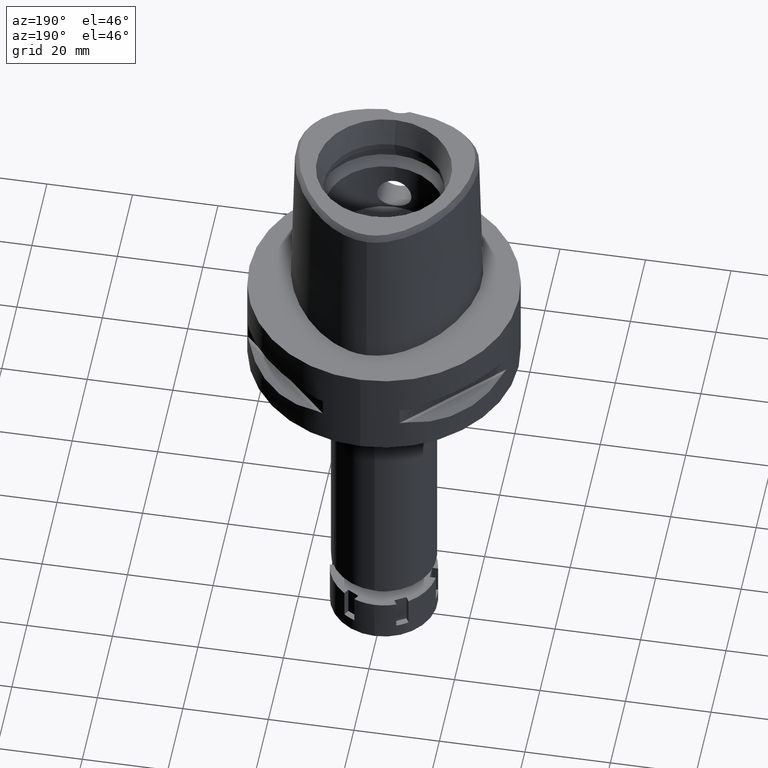
[diagram: clean part render]
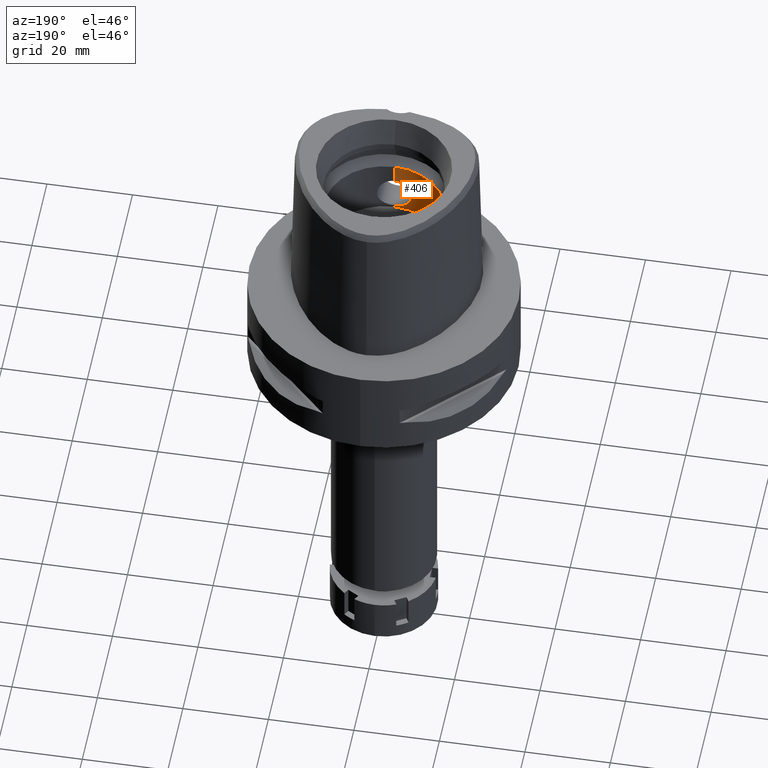
[diagram: same view with one face highlighted and labeled with its STEP entity id]
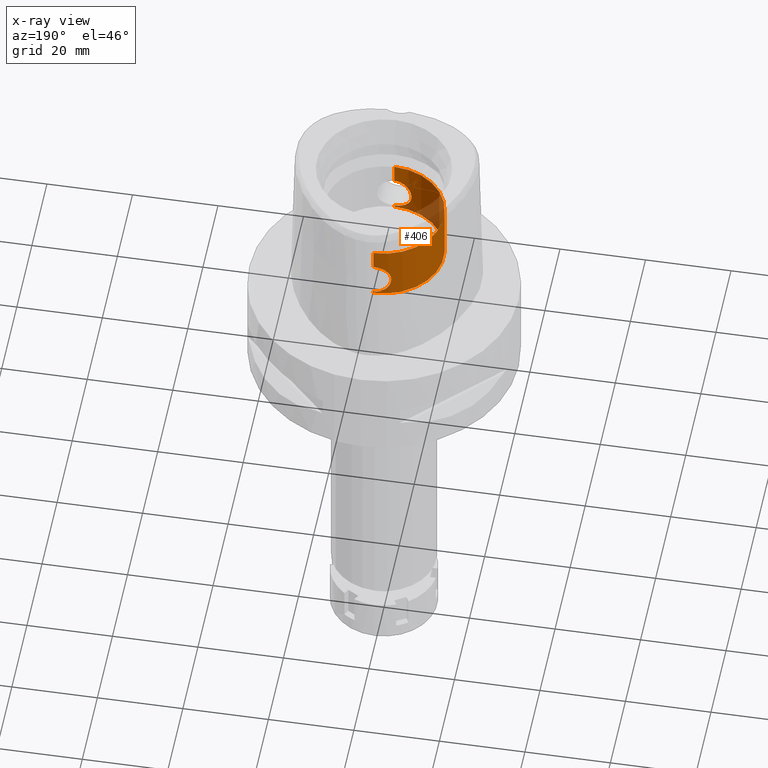
[diagram: x-ray of the same camera — body ghosted, the highlighted face saturated]
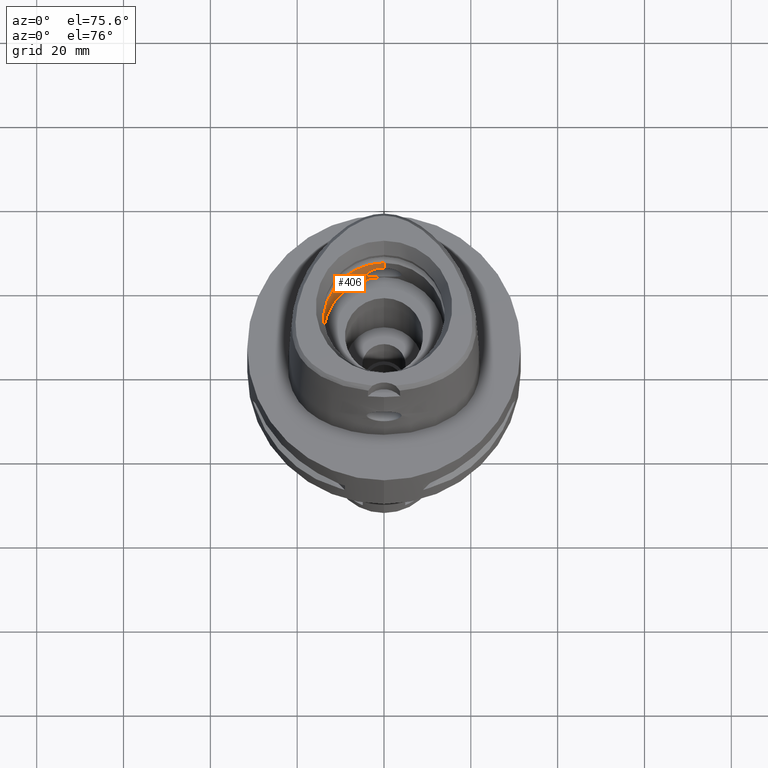
[diagram: same view with one face highlighted and labeled with its STEP entity id]
A machine part, auxiliary view. The second image highlights one B-rep face of the part: STEP entity #406.
The next image is the same camera in x-ray: the body ghosted, the highlighted face saturated — about 11% of this face is hidden behind the body in this view.
A second angle (auxiliary view) of the same face is appended — the face is thin or edge-on in the first view.
In plain terms, the highlighted cylindrical surface (partial cylindrical patch) has radius 14 mm, axis along (0, 0, -1).
Its self-contained STEP definition (entity closure, byte-faithful):
#4 = CARTESIAN_POINT ( 'NONE',  ( -2.837978858523875658, 13.70934507260265889, 18.38945062057910107 ) ) ;
#19 = LINE ( 'NONE', #2620, #2634 ) ;
#64 = CARTESIAN_POINT ( 'NONE',  ( -3.321818675673360310, 13.60022453488441307, 17.81710118645127494 ) ) ;
#88 = CARTESIAN_POINT ( 'NONE',  ( -2.286398386022375107, 13.81203673216855421, 12.15707516242134645 ) ) ;
#109 = VERTEX_POINT ( 'NONE', #911 ) ;
#112 = CARTESIAN_POINT ( 'NONE',  ( -3.446436350191965925, 13.56939302552878601, 17.63216979020259245 ) ) ;
#135 = CARTESIAN_POINT ( 'NONE',  ( -2.255323879992921832, 13.81714880390372358, 12.13606855324745659 ) ) ;
#140 = CARTESIAN_POINT ( 'NONE',  ( -1.643394206415252912, -13.90359217049017637, 11.79641963000350735 ) ) ;
#146 = CARTESIAN_POINT ( 'NONE',  ( -3.927481156276703356, -13.43839870143042070, 14.47659767331564851 ) ) ;
#159 = CARTESIAN_POINT ( 'NONE',  ( -3.754238695447207785, 13.48734574627154004, 13.98070187456518632 ) ) ;
#163 = DIRECTION ( 'NONE',  ( 0.0000000000000000000, -1.000000000000000000, 0.0000000000000000000 ) ) ;
#164 = CARTESIAN_POINT ( 'NONE',  ( -2.407032360563614137, -13.79178997040971133, 12.24015219205911009 ) ) ;
#184 = CARTESIAN_POINT ( 'NONE',  ( -3.750537618544252716, 13.48837475229623095, 13.97159430630828680 ) ) ;
#193 = CARTESIAN_POINT ( 'NONE',  ( -2.180419572367277237, -13.82916698131268340, 12.08696268834681398 ) ) ;
#220 = LINE ( 'NONE', #3594, #290 ) ;
#226 = CARTESIAN_POINT ( 'NONE',  ( -3.321853313816561126, -13.60021618836596602, 13.18294841949425589 ) ) ;
#263 = CARTESIAN_POINT ( 'NONE',  ( -3.444120655667430420, -13.56976859149127002, 17.63136982694932087 ) ) ;
#277 = DIRECTION ( 'NONE',  ( 0.0000000000000000000, 0.0000000000000000000, 1.000000000000000000 ) ) ;
#290 = VECTOR ( 'NONE', #1465, 1000.000000000000000 ) ;
#293 = CARTESIAN_POINT ( 'NONE',  ( -2.356176558260017817, -13.80026501326340949, 18.79419852732514684 ) ) ;
#331 = EDGE_CURVE ( 'NONE', #3643, #4776, #1642, .T. ) ;
#363 = EDGE_LOOP ( 'NONE', ( #962, #1253, #4699, #4331, #3303, #4675, #3151, #1590 ) ) ;
#367 = CARTESIAN_POINT ( 'NONE',  ( -1.935031803127010175, 13.86568816070503907, 19.05844626928363894 ) ) ;
#400 = CARTESIAN_POINT ( 'NONE',  ( -2.083411601078662745, 13.84411510349304208, 18.97319540526133963 ) ) ;
#406 = ADVANCED_FACE ( 'NONE', ( #4474 ), #5319, .F. ) ;
#433 = CARTESIAN_POINT ( 'NONE',  ( -1.643415310734924306, 13.90358979474741652, 19.20357080160434649 ) ) ;
#453 = VERTEX_POINT ( 'NONE', #1973 ) ;
#475 = CARTESIAN_POINT ( 'NONE',  ( 0.0000000000000000000, -14.00000000000000000, 11.00000000000000000 ) ) ;
#488 = CARTESIAN_POINT ( 'NONE',  ( 0.0000000000000000000, 14.00000000000000000, 19.55000000000000071 ) ) ;
#521 = CARTESIAN_POINT ( 'NONE',  ( -1.571462107190173096, 13.91140666532740511, 11.76727331523304088 ) ) ;
#529 = CARTESIAN_POINT ( 'NONE',  ( -3.723016948482198440, -13.49602158194763746, 13.90561649030535918 ) ) ;
#542 = CARTESIAN_POINT ( 'NONE',  ( -4.049896901465993793, 13.40142245051326420, 15.25152965794993776 ) ) ;
#564 = CARTESIAN_POINT ( 'NONE',  ( -3.098504878937593521, 13.65306871748957995, 12.89079134081682909 ) ) ;
#569 = CARTESIAN_POINT ( 'NONE',  ( -3.359057406672039559, -13.59102633627046863, 13.23742626534944833 ) ) ;
#591 = CARTESIAN_POINT ( 'NONE',  ( -3.760700854268280047, 13.48554726028666906, 13.99676879321618550 ) ) ;
#597 = CARTESIAN_POINT ( 'NONE',  ( -2.619686157468937626, -13.75271022501200946, 12.41040829226227515 ) ) ;
#604 = CARTESIAN_POINT ( 'NONE',  ( -4.049888364927977769, -13.40142438051590368, 15.74858425829883402 ) ) ;
#617 = CARTESIAN_POINT ( 'NONE',  ( -4.027177030541076341, 13.40874799796429961, 14.99692865875754499 ) ) ;
#625 = CARTESIAN_POINT ( 'NONE',  ( -2.312898137749423100, -13.80784210691287406, 12.17400781861397618 ) ) ;
#631 = CARTESIAN_POINT ( 'NONE',  ( -3.649287980261081810, -13.51628390331949525, 17.26146288145097074 ) ) ;
#647 = DIRECTION ( 'NONE',  ( 0.0000000000000000000, 0.0000000000000000000, 1.000000000000000000 ) ) ;
#654 = CARTESIAN_POINT ( 'NONE',  ( -3.092413353117760444, -13.65466607278749755, 12.88133576746538189 ) ) ;
#663 = CARTESIAN_POINT ( 'NONE',  ( -3.410729761823929618, -13.57816908607356687, 17.68402948338712832 ) ) ;
#689 = DIRECTION ( 'NONE',  ( 0.0000000000000000000, 0.0000000000000000000, -1.000000000000000000 ) ) ;
#690 = CARTESIAN_POINT ( 'NONE',  ( -3.446478130593934708, -13.56938248441540473, 13.36789723762434789 ) ) ;
#727 = CARTESIAN_POINT ( 'NONE',  ( -3.760687355218495842, -13.48555138752895743, 17.00326497579651175 ) ) ;
#753 = CARTESIAN_POINT ( 'NONE',  ( -2.322873642589027732, -13.80594824667627663, 18.81781813267140180 ) ) ;
#857 = CARTESIAN_POINT ( 'NONE',  ( -0.5031407453973538724, 13.99299611601340310, 19.52713535065471362 ) ) ;
#871 = DIRECTION ( 'NONE',  ( 0.0000000000000000000, 0.0000000000000000000, 1.000000000000000000 ) ) ;
#882 = CARTESIAN_POINT ( 'NONE',  ( -2.225297292170477004, 13.82200194383636571, 18.88386937964061474 ) ) ;
#888 = EDGE_CURVE ( 'NONE', #978, #1123, #5051, .T. ) ;
#911 = CARTESIAN_POINT ( 'NONE',  ( 0.0000000000000000000, 14.00000000000000000, 11.44999999999999929 ) ) ;
#938 = CARTESIAN_POINT ( 'NONE',  ( -2.256427752581860346, 13.81696803720785027, 12.13681065373009282 ) ) ;
#949 = CARTESIAN_POINT ( 'NONE',  ( -3.864690270360905622, -13.45628098107098936, 16.71293879899407386 ) ) ;
#952 = EDGE_CURVE ( 'NONE', #2453, #453, #19, .T. ) ;
#962 = ORIENTED_EDGE ( 'NONE', *, *, #1908, .F. ) ;
#965 = CARTESIAN_POINT ( 'NONE',  ( -3.557103315862197412, 13.54067999979679016, 13.56250036251559266 ) ) ;
#975 = CARTESIAN_POINT ( 'NONE',  ( -4.050110812253317150, -13.40137386750408233, 15.25506672271457376 ) ) ;
#978 = VERTEX_POINT ( 'NONE', #475 ) ;
#989 = CARTESIAN_POINT ( 'NONE',  ( -2.268770039433237518, 13.81494532562728850, 12.14511618722574582 ) ) ;
#993 = CARTESIAN_POINT ( 'NONE',  ( -3.344238039716466382, -13.59469216954687099, 13.21553584121841141 ) ) ;
#1012 = CARTESIAN_POINT ( 'NONE',  ( -3.850551668351260837, 13.46064315705944736, 16.78616536914487511 ) ) ;
#1019 = CARTESIAN_POINT ( 'NONE',  ( -2.217814638591480314, -13.82320508336324849, 12.11122171766705513 ) ) ;
#1042 = CARTESIAN_POINT ( 'NONE',  ( -3.329846348044684934, 13.59830429444947697, 13.19312097257027538 ) ) ;
#1048 = CARTESIAN_POINT ( 'NONE',  ( -1.017634815018009897, -13.96323084136859727, 11.57763677123180379 ) ) ;
#1055 = CARTESIAN_POINT ( 'NONE',  ( -3.471394015375984576, -13.56282214852042678, 17.58641446143571585 ) ) ;
#1071 = CARTESIAN_POINT ( 'NONE',  ( 0.0000000000000000000, 0.0000000000000000000, 39.89999999999999858 ) ) ;
#1072 = CARTESIAN_POINT ( 'NONE',  ( -1.467171431347119803, -13.92282306808096592, 11.72505602459309237 ) ) ;
#1079 = CARTESIAN_POINT ( 'NONE',  ( -2.632430901664709832, -13.75053431939276827, 18.58072566514229251 ) ) ;
#1105 = CARTESIAN_POINT ( 'NONE',  ( -2.987574083360148958, -13.67819611580214634, 12.75919171830227761 ) ) ;
#1123 = VERTEX_POINT ( 'NONE', #1407 ) ;
#1168 = CARTESIAN_POINT ( 'NONE',  ( -1.773866901112352901, -13.88717232140601077, 19.14143182997138481 ) ) ;
#1179 = CARTESIAN_POINT ( 'NONE',  ( -1.029187525018224747, 13.97152819383275002, 11.54372763678625802 ) ) ;
#1195 = CARTESIAN_POINT ( 'NONE',  ( 0.0000000000000000000, -14.00000000000000000, 19.55000000000000071 ) ) ;
#1253 = ORIENTED_EDGE ( 'NONE', *, *, #888, .T. ) ;
#1273 = CARTESIAN_POINT ( 'NONE',  ( -1.516920385664373150, 13.91749884183752961, 19.25522076863004983 ) ) ;
#1335 = CARTESIAN_POINT ( 'NONE',  ( -2.312900638392178632, 13.80784164026959715, 18.82599051021653125 ) ) ;
#1336 = CARTESIAN_POINT ( 'NONE',  ( 0.0000000000000000000, 14.00000000000000000, 19.55000000000000071 ) ) ;
#1361 = CARTESIAN_POINT ( 'NONE',  ( -1.467197647157900908, 13.92282048153832719, 19.27493378766159893 ) ) ;
#1391 = VECTOR ( 'NONE', #277, 1000.000000000000000 ) ;
#1392 = CARTESIAN_POINT ( 'NONE',  ( -3.518015050369055707, 13.55099577414488010, 17.51099131749448290 ) ) ;
#1407 = CARTESIAN_POINT ( 'NONE',  ( 0.0000000000000000000, 14.00000000000000000, 11.00000000000000000 ) ) ;
#1417 = CARTESIAN_POINT ( 'NONE',  ( -3.386228288496582195, 13.58428977150568073, 13.27829381858609992 ) ) ;
#1439 = CARTESIAN_POINT ( 'NONE',  ( -2.010507491949531822, 13.85534073015723422, 11.98171406918338988 ) ) ;
#1444 = CARTESIAN_POINT ( 'NONE',  ( -2.749425564356545060, -13.72738545437160163, 12.52576752525318859 ) ) ;
#1459 = DIRECTION ( 'NONE',  ( 0.0000000000000000000, 0.0000000000000000000, 1.000000000000000000 ) ) ;
#1462 = CARTESIAN_POINT ( 'NONE',  ( -3.377728049961138623, 13.58640530706103888, 13.26539486208216090 ) ) ;
#1465 = DIRECTION ( 'NONE',  ( 0.0000000000000000000, 0.0000000000000000000, 1.000000000000000000 ) ) ;
#1466 = EDGE_CURVE ( 'NONE', #453, #3915, #2463, .T. ) ;
#1499 = CARTESIAN_POINT ( 'NONE',  ( -3.641230269576494649, 13.51834568162910166, 17.27426933462038505 ) ) ;
#1512 = CARTESIAN_POINT ( 'NONE',  ( -3.750524322623024265, -13.48837880578509640, 17.02843831975096123 ) ) ;
#1532 = CARTESIAN_POINT ( 'NONE',  ( -2.824270181472749996, -13.71216970554408654, 12.59716805753184588 ) ) ;
#1569 = CARTESIAN_POINT ( 'NONE',  ( -2.474905499061441638, -13.77946236753882303, 18.70653372657951152 ) ) ;
#1590 = ORIENTED_EDGE ( 'NONE', *, *, #331, .F. ) ;
#1599 = CARTESIAN_POINT ( 'NONE',  ( -1.832688503999202911, -13.87954592927308362, 19.11223571035986168 ) ) ;
#1625 = CARTESIAN_POINT ( 'NONE',  ( -1.571467769238337642, -13.91140618995270906, 19.23272429961998142 ) ) ;
#1642 = B_SPLINE_CURVE_WITH_KNOTS ( 'NONE', 3,
 ( #4540, #5379, #4901, #2378, #1048, #4420, #4451, #4504, #1072, #5320, #5293, #140, #1884, #4051, #4959, #3194, #1943, #193, #2708, #1019, #4844, #3628, #625, #164, #3551, #597, #4868, #1444, #4023, #1532, #5350, #1105, #654, #3223, #4929, #4085, #226, #993, #3657, #569, #2826, #1863, #690, #3573, #3969, #5270, #4000, #5510, #529, #4404, #1842, #3170, #2295, #146, #4877, #975, #604, #2569, #2324, #4029, #949, #1815, #5251, #3205, #727, #3752, #1512, #4058, #631, #4910, #4122, #1055, #263, #663, #2772, #4570, #1984, #2046, #5358, #3230, #3664, #3311, #2016, #1953, #4936, #3253, #2447, #1079, #1569, #2802, #293, #753, #5000, #3727, #2386, #4512, #5026, #4480, #5449, #1599, #1168, #2885, #4600, #2475, #1625, #3336, #5052, #2915, #1195 ),
 .UNSPECIFIED., .F., .F.,
 ( 4, 2, 2, 1, 1, 2, 2, 2, 2, 1, 1, 1, 2, 2, 2, 2, 1, 2, 2, 2, 2, 1, 1, 1, 2, 2, 2, 2, 1, 1, 2, 2, 2, 2, 2, 2, 1, 1, 1, 2, 2, 2, 2, 1, 1, 1, 2, 2, 2, 2, 2, 2, 2, 2, 1, 1, 1, 2, 2, 2, 2, 1, 2, 2, 4 ),
 ( 0.0000000000000000000, 0.06249999999998706590, 0.09374999999998054334, 0.1093749999999772127, 0.1171874999999754918, 0.1210937499999746869, 0.1249999999999738959, 0.1562499999999678868, 0.1718749999999648614, 0.1796874999999633349, 0.1835937499999625022, 0.1855468749999620859, 0.1865234374999620026, 0.1874999999999619471, 0.2187499999999552580, 0.2343749999999517886, 0.2421874999999502065, 0.2460937499999492906, 0.2499999999999483746, 0.2812499999999402700, 0.2968749999999362177, 0.3046874999999340528, 0.3085937499999331646, 0.3105468749999327205, 0.3115234374999324984, 0.3124999999999322209, 0.3437499999999352740, 0.3593749999999367728, 0.3671874999999375500, 0.3710937499999382161, 0.3730468749999384936, 0.3749999999999388267, 0.4374999999999487632, 0.4999999999999586997, 0.5624999999999685807, 0.5937499999999732436, 0.6093749999999755751, 0.6171874999999767963, 0.6210937499999772404, 0.6230468749999775735, 0.6249999999999777955, 0.6562499999999837907, 0.6718749999999863443, 0.6796874999999875655, 0.6835937499999882316, 0.6855468749999884537, 0.6865234374999882316, 0.6874999999999880096, 0.7187499999999833467, 0.7343749999999807931, 0.7421874999999792388, 0.7499999999999775735, 0.7812499999999716893, 0.7968749999999686917, 0.8046874999999671374, 0.8085937499999665823, 0.8105468749999663602, 0.8115234374999662492, 0.8124999999999661382, 0.8437499999999698019, 0.8593749999999715783, 0.8671874999999726885, 0.8710937499999731326, 0.8749999999999736877, 1.000000000000000000 ),
 .UNSPECIFIED. ) ;
#1665 = CARTESIAN_POINT ( 'NONE',  ( 0.0000000000000000000, 0.0000000000000000000, 11.00000000000000000 ) ) ;
#1679 = CARTESIAN_POINT ( 'NONE',  ( -2.128124874501789332, 13.83734818430797553, 18.94612210418497966 ) ) ;
#1703 = CARTESIAN_POINT ( 'NONE',  ( -2.407033472313297562, 13.79178974266145907, 18.75984676825466479 ) ) ;
#1727 = CARTESIAN_POINT ( 'NONE',  ( -3.092390845124751486, 13.65467110477480617, 18.11869046924010007 ) ) ;
#1754 = CARTESIAN_POINT ( 'NONE',  ( -1.210747585064585241, 13.94747087010052411, 19.36537112441429898 ) ) ;
#1783 = EDGE_CURVE ( 'NONE', #1123, #109, #1937, .T. ) ;
#1784 = CARTESIAN_POINT ( 'NONE',  ( -3.344200888486977608, 13.59470120130075621, 17.78451853051173615 ) ) ;
#1806 = CARTESIAN_POINT ( 'NONE',  ( -3.740342756350068854, 13.49122728102877744, 17.05319435210082801 ) ) ;
#1815 = CARTESIAN_POINT ( 'NONE',  ( -3.833369308889835736, -13.46518925916761944, 16.80995876181424364 ) ) ;
#1830 = CARTESIAN_POINT ( 'NONE',  ( -3.381267134393989071, 13.58552518092179717, 13.27075058725716339 ) ) ;
#1842 = CARTESIAN_POINT ( 'NONE',  ( -3.737892709872518093, -13.49190587340985914, 13.94092444701525935 ) ) ;
#1859 = CARTESIAN_POINT ( 'NONE',  ( -3.833383690844314184, 13.46518483971829561, 14.19008306889938709 ) ) ;
#1863 = CARTESIAN_POINT ( 'NONE',  ( -3.362173742602614368, -13.59025497177323238, 13.24205651252869664 ) ) ;
#1879 = CARTESIAN_POINT ( 'NONE',  ( -3.922086968081855751, 13.43982905497387748, 14.48120596842087160 ) ) ;
#1884 = CARTESIAN_POINT ( 'NONE',  ( -1.758905181551283281, -13.88947997003250023, 11.84947872873092933 ) ) ;
#1898 = VECTOR ( 'NONE', #647, 1000.000000000000000 ) ;
#1905 = CARTESIAN_POINT ( 'NONE',  ( -3.267850773748626647, 13.61368064684365820, 13.10388896299057748 ) ) ;
#1908 = EDGE_CURVE ( 'NONE', #978, #3643, #220, .T. ) ;
#1937 = LINE ( 'NONE', #3134, #1898 ) ;
#1943 = CARTESIAN_POINT ( 'NONE',  ( -2.128121687471102419, -13.83734872393078597, 12.05387591117995427 ) ) ;
#1953 = CARTESIAN_POINT ( 'NONE',  ( -2.993286815507711474, -13.67636053672545060, 18.22846751438161306 ) ) ;
#1967 = CARTESIAN_POINT ( 'NONE',  ( -0.4996125166952807284, 14.00000000000000355, 11.45000000000000462 ) ) ;
#1973 = CARTESIAN_POINT ( 'NONE',  ( 0.0000000000000000000, 14.00000000000000000, 24.19999999999999929 ) ) ;
#1984 = CARTESIAN_POINT ( 'NONE',  ( -3.381261640111615563, -13.58552648434263865, 17.72925774582015990 ) ) ;
#2000 = AXIS2_PLACEMENT_3D ( 'NONE', #3588, #1459, #3128 ) ;
#2016 = CARTESIAN_POINT ( 'NONE',  ( -3.020671571505663788, -13.67035761354438961, 18.19807224233194276 ) ) ;
#2046 = CARTESIAN_POINT ( 'NONE',  ( -3.377722732033453745, -13.58640656469127528, 17.73461317607163679 ) ) ;
#2090 = CARTESIAN_POINT ( 'NONE',  ( -2.180421397699280561, 13.82916663773787036, 18.91303614152313628 ) ) ;
#2175 = CARTESIAN_POINT ( 'NONE',  ( -3.354678549943816535, 13.59210992299929188, 17.76907015803455536 ) ) ;
#2207 = CARTESIAN_POINT ( 'NONE',  ( -2.705636138407079727, 13.73602333027448097, 18.51388304891932890 ) ) ;
#2236 = CARTESIAN_POINT ( 'NONE',  ( -3.649301949972809656, 13.51627993554674134, 13.73856573843788276 ) ) ;
#2256 = CARTESIAN_POINT ( 'NONE',  ( 0.0000000000000000000, -14.00000000000000000, 11.44999999999999929 ) ) ;
#2257 = CARTESIAN_POINT ( 'NONE',  ( -3.864704953914419150, 13.45627652363382509, 14.28710780149922854 ) ) ;
#2283 = CARTESIAN_POINT ( 'NONE',  ( -2.261346978752236669, 13.81616282470567825, 12.14011627832552165 ) ) ;
#2295 = CARTESIAN_POINT ( 'NONE',  ( -3.850581325947942002, -13.46063411092176665, 14.21392402467050431 ) ) ;
#2312 = CARTESIAN_POINT ( 'NONE',  ( -1.643117181691682527, 13.90317184028721798, 11.79805591750830729 ) ) ;
#2324 = CARTESIAN_POINT ( 'NONE',  ( -3.953308345509189081, -13.43069386239823437, 16.38940134542785998 ) ) ;
#2338 = CARTESIAN_POINT ( 'NONE',  ( -2.903820362920327192, 13.69557819983833191, 12.67648326539568160 ) ) ;
#2378 = CARTESIAN_POINT ( 'NONE',  ( -0.8886493225593367074, -13.97198540294750480, 11.54653074165001136 ) ) ;
#2386 = CARTESIAN_POINT ( 'NONE',  ( -2.261346510149459643, -13.81616280940066588, 18.85988403713285777 ) ) ;
#2431 = LINE ( 'NONE', #5430, #1391 ) ;
#2447 = CARTESIAN_POINT ( 'NONE',  ( -2.749422472407565099, -13.72794489289828057, 18.47890695833534380 ) ) ;
#2453 = VERTEX_POINT ( 'NONE', #1336 ) ;
#2463 = CIRCLE ( 'NONE', #2000, 14.00000000000000000 ) ;
#2475 = CARTESIAN_POINT ( 'NONE',  ( -1.600075446870311113, -13.90814546667693108, 19.22055106282001447 ) ) ;
#2522 = CARTESIAN_POINT ( 'NONE',  ( -0.8886659557338186799, 13.97198446405361594, 19.45346560054120388 ) ) ;
#2549 = B_SPLINE_CURVE_WITH_KNOTS ( 'NONE', 3,
 ( #488, #2992, #857, #2522, #2632, #1754, #4224, #4255, #1361, #3024, #1273, #433, #4760, #367, #5191, #400, #1679, #2090, #3859, #3803, #882, #4706, #1335, #1703, #4335, #3050, #2207, #2580, #3414, #5128, #4, #3919, #1727, #2608, #3440, #4310, #64, #1784, #2175, #3885, #3493, #5215, #112, #1392, #2760, #1499, #3592, #3106, #4468, #5239, #5290, #1806, #1012, #5266, #3965, #3157, #542, #617, #4816, #1879, #2257, #1859, #3994, #4018, #591, #159, #184, #5312, #2236, #965, #2683, #3185, #4894, #5343, #4417, #1417, #1830, #1462, #1042, #1905, #3621, #564, #3544, #4395, #2703, #2338, #4044, #3132, #4788, #2730, #3514, #4839, #88, #989, #2283, #938, #135, #3570, #1439, #4861, #2662, #4443, #2312, #4374, #521, #3943, #1179, #1967, #3739 ),
 .UNSPECIFIED., .F., .F.,
 ( 4, 2, 2, 1, 1, 2, 2, 2, 2, 1, 1, 1, 2, 2, 2, 2, 1, 2, 2, 2, 2, 1, 1, 1, 2, 2, 2, 2, 1, 1, 2, 2, 2, 2, 2, 2, 1, 1, 1, 2, 2, 2, 2, 1, 1, 1, 2, 2, 2, 2, 2, 2, 2, 2, 1, 1, 1, 2, 2, 2, 2, 1, 2, 2, 4 ),
 ( 0.0000000000000000000, 0.06250000000000770217, 0.09375000000001151856, 0.1093750000000134476, 0.1171875000000144190, 0.1210937500000147660, 0.1250000000000151268, 0.1562500000000202893, 0.1718750000000230094, 0.1796875000000243694, 0.1835937500000252021, 0.1855468750000256739, 0.1865234375000258682, 0.1875000000000260902, 0.2187500000000291156, 0.2343750000000303924, 0.2421875000000310030, 0.2460937500000311418, 0.2500000000000312528, 0.2812500000000331402, 0.2968750000000343614, 0.3046875000000350275, 0.3085937500000354161, 0.3105468750000360822, 0.3115234375000359712, 0.3125000000000358047, 0.3437500000000310862, 0.3593750000000286993, 0.3671875000000278666, 0.3710937500000274780, 0.3730468750000269229, 0.3750000000000263678, 0.4375000000000303646, 0.5000000000000343059, 0.5625000000000381917, 0.5937500000000404121, 0.6093750000000414113, 0.6171875000000421885, 0.6210937500000422995, 0.6230468750000425215, 0.6250000000000426326, 0.6562500000000452971, 0.6718750000000467404, 0.6796875000000475175, 0.6835937500000481837, 0.6855468750000484057, 0.6865234375000485167, 0.6875000000000486278, 0.7187500000000430767, 0.7343750000000401901, 0.7421875000000388578, 0.7500000000000374145, 0.7812500000000315303, 0.7968750000000286438, 0.8046875000000270894, 0.8085937500000264233, 0.8105468750000259792, 0.8115234375000256462, 0.8125000000000253131, 0.8437500000000202061, 0.8593750000000176525, 0.8671875000000165423, 0.8710937500000159872, 0.8750000000000154321, 1.000000000000000000 ),
 .UNSPECIFIED. ) ;
#2569 = CARTESIAN_POINT ( 'NONE',  ( -4.027164429064433726, -13.40875122217619975, 16.00316316733650623 ) ) ;
#2580 = CARTESIAN_POINT ( 'NONE',  ( -2.749410275058081332, 13.72738853752937871, 18.47424654122641385 ) ) ;
#2608 = CARTESIAN_POINT ( 'NONE',  ( -3.217024280452940310, 13.62560801649056330, 17.96124663679836786 ) ) ;
#2620 = CARTESIAN_POINT ( 'NONE',  ( 0.0000000000000000000, 14.00000000000000000, 19.55000000000000071 ) ) ;
#2632 = CARTESIAN_POINT ( 'NONE',  ( -1.017653704333610909, 13.96322960907036936, 19.42235841233798865 ) ) ;
#2634 = VECTOR ( 'NONE', #871, 1000.000000000000000 ) ;
#2662 = CARTESIAN_POINT ( 'NONE',  ( -1.773865141563537806, 13.88717244335602885, 11.85856729402129695 ) ) ;
#2683 = CARTESIAN_POINT ( 'NONE',  ( -3.524214125959910682, 13.54926494695427230, 13.50319703746742306 ) ) ;
#2703 = CARTESIAN_POINT ( 'NONE',  ( -2.935454736716768931, 13.68884642359337889, 12.70940751404423175 ) ) ;
#2708 = CARTESIAN_POINT ( 'NONE',  ( -2.206593057645283906, -13.82500440804228248, 12.10388654105353368 ) ) ;
#2730 = CARTESIAN_POINT ( 'NONE',  ( -2.425350615249378450, 13.78827952446820504, 12.25601757812511217 ) ) ;
#2760 = CARTESIAN_POINT ( 'NONE',  ( -3.612086905562160055, 13.52616283723704527, 17.33298450077509401 ) ) ;
#2772 = CARTESIAN_POINT ( 'NONE',  ( -3.393635066736990336, -13.58244341114379594, 17.71040336024395145 ) ) ;
#2802 = CARTESIAN_POINT ( 'NONE',  ( -2.425352929830761450, -13.78827903498823026, 18.74398070436034658 ) ) ;
#2826 = CARTESIAN_POINT ( 'NONE',  ( -3.361917771721143477, -13.59031831955140746, 13.24167861847911531 ) ) ;
#2885 = CARTESIAN_POINT ( 'NONE',  ( -1.686550735073850227, -13.89794894225657629, 19.18226547207280319 ) ) ;
#2898 = CARTESIAN_POINT ( 'NONE',  ( 0.0000000000000000000, -14.00000000000000000, 24.19999999999999929 ) ) ;
#2915 = CARTESIAN_POINT ( 'NONE',  ( -0.4996155958000648156, -14.00000000000000355, 19.54999999999999716 ) ) ;
#2992 = CARTESIAN_POINT ( 'NONE',  ( -0.2481281382474659070, 13.99999999999999645, 19.55000000000000426 ) ) ;
#3024 = CARTESIAN_POINT ( 'NONE',  ( -1.499110254778780682, 13.91942797523232045, 19.26237458011186732 ) ) ;
#3050 = CARTESIAN_POINT ( 'NONE',  ( -2.619678395009813254, 13.75271173106642664, 18.58959817626654143 ) ) ;
#3106 = CARTESIAN_POINT ( 'NONE',  ( -3.701442083199339983, 13.50196586783473229, 17.14423904799096121 ) ) ;
#3128 = DIRECTION ( 'NONE',  ( 0.0000000000000000000, 1.000000000000000000, 0.0000000000000000000 ) ) ;
#3132 = CARTESIAN_POINT ( 'NONE',  ( -2.632427885378332277, 13.75053493544651850, 12.41927177501716351 ) ) ;
#3134 = CARTESIAN_POINT ( 'NONE',  ( 0.0000000000000000000, 14.00000000000000000, 11.00000000000000000 ) ) ;
#3151 = ORIENTED_EDGE ( 'NONE', *, *, #3948, .F. ) ;
#3157 = CARTESIAN_POINT ( 'NONE',  ( -4.050102396491989332, 13.40137576637343564, 15.74509794228472259 ) ) ;
#3170 = CARTESIAN_POINT ( 'NONE',  ( -3.740379875244168595, -13.49121655552213817, 13.94689503969061306 ) ) ;
#3185 = CARTESIAN_POINT ( 'NONE',  ( -3.471403466889675382, 13.56281975630169079, 13.41360123915275615 ) ) ;
#3194 = CARTESIAN_POINT ( 'NONE',  ( -2.083407133979089387, -13.84411581087880805, 12.02680190502324820 ) ) ;
#3205 = CARTESIAN_POINT ( 'NONE',  ( -3.770294771788084365, -13.48287509938690754, 16.97915535985378099 ) ) ;
#3223 = CARTESIAN_POINT ( 'NONE',  ( -3.217051431884577983, -13.62560170214282529, 13.03878876121254748 ) ) ;
#3230 = CARTESIAN_POINT ( 'NONE',  ( -3.267849621291889495, -13.61368086708453262, 17.89611250668551179 ) ) ;
#3252 = AXIS2_PLACEMENT_3D ( 'NONE', #1071, #689, #163 ) ;
#3253 = CARTESIAN_POINT ( 'NONE',  ( -2.903821122528534637, -13.69557803345042934, 18.32351594660708827 ) ) ;
#3303 = ORIENTED_EDGE ( 'NONE', *, *, #952, .T. ) ;
#3311 = CARTESIAN_POINT ( 'NONE',  ( -3.098505828287771990, -13.65306849081136065, 18.10920752395151823 ) ) ;
#3318 = DIRECTION ( 'NONE',  ( 0.0000000000000000000, 0.0000000000000000000, -1.000000000000000000 ) ) ;
#3336 = CARTESIAN_POINT ( 'NONE',  ( -1.559052860813935792, -13.91280454319134741, 19.23793469162774628 ) ) ;
#3414 = CARTESIAN_POINT ( 'NONE',  ( -2.794193095550614458, 13.71831785626063471, 18.43179471077272780 ) ) ;
#3440 = CARTESIAN_POINT ( 'NONE',  ( -3.253121226259194643, 13.61695887881314349, 17.91300007226983482 ) ) ;
#3493 = CARTESIAN_POINT ( 'NONE',  ( -3.361878329223875639, 13.59032797669669712, 17.75838009719688770 ) ) ;
#3514 = CARTESIAN_POINT ( 'NONE',  ( -2.356175113612528627, 13.80026535252377506, 12.20580044258488428 ) ) ;
#3544 = CARTESIAN_POINT ( 'NONE',  ( -3.020670326861687460, 13.67035789235692533, 12.80192636230838943 ) ) ;
#3551 = CARTESIAN_POINT ( 'NONE',  ( -2.564506475594239721, -13.76306145072739184, 12.36467152190243723 ) ) ;
#3570 = CARTESIAN_POINT ( 'NONE',  ( -2.130879132385648411, 13.83743606478237886, 12.05283736807325390 ) ) ;
#3573 = CARTESIAN_POINT ( 'NONE',  ( -3.518057238191445002, -13.55098476909663852, 13.48908220782326239 ) ) ;
#3588 = CARTESIAN_POINT ( 'NONE',  ( 0.0000000000000000000, 0.0000000000000000000, 24.19999999999999929 ) ) ;
#3592 = CARTESIAN_POINT ( 'NONE',  ( -3.681881978309159198, 13.50731068325918827, 17.18738480636925914 ) ) ;
#3594 = CARTESIAN_POINT ( 'NONE',  ( 0.0000000000000000000, -14.00000000000000000, 11.00000000000000000 ) ) ;
#3621 = CARTESIAN_POINT ( 'NONE',  ( -3.144638533004743497, 13.64250208600662972, 12.94692877262820296 ) ) ;
#3628 = CARTESIAN_POINT ( 'NONE',  ( -2.230276049858678444, -13.82119878116904665, 12.11941162708658304 ) ) ;
#3643 = VERTEX_POINT ( 'NONE', #2256 ) ;
#3657 = CARTESIAN_POINT ( 'NONE',  ( -3.354717022404180238, -13.59210053067303292, 13.23098671883897204 ) ) ;
#3664 = CARTESIAN_POINT ( 'NONE',  ( -3.144639082064989655, -13.64250193806951827, 18.05307052714325877 ) ) ;
#3727 = CARTESIAN_POINT ( 'NONE',  ( -2.268769762111626953, -13.81494527824180807, 18.85488400079007221 ) ) ;
#3739 = CARTESIAN_POINT ( 'NONE',  ( 0.0000000000000000000, 14.00000000000000000, 11.44999999999999929 ) ) ;
#3752 = CARTESIAN_POINT ( 'NONE',  ( -3.754225276815020607, -13.48734984053216301, 17.01933128121551420 ) ) ;
#3803 = CARTESIAN_POINT ( 'NONE',  ( -2.217815544945762163, 13.82320487995601432, 18.88877768902115761 ) ) ;
#3859 = CARTESIAN_POINT ( 'NONE',  ( -2.206594234810052235, 13.82500416257260412, 18.89611269310480068 ) ) ;
#3885 = CARTESIAN_POINT ( 'NONE',  ( -3.359018354050579802, 13.59103588697515264, 17.76263171132013596 ) ) ;
#3915 = VERTEX_POINT ( 'NONE', #2898 ) ;
#3919 = CARTESIAN_POINT ( 'NONE',  ( -2.987552952139467699, 13.67820073063358244, 18.24083132106714444 ) ) ;
#3943 = CARTESIAN_POINT ( 'NONE',  ( -1.559046470356686420, 13.91280509361279805, 11.76206264320538786 ) ) ;
#3948 = EDGE_CURVE ( 'NONE', #4776, #3915, #2431, .T. ) ;
#3965 = CARTESIAN_POINT ( 'NONE',  ( -4.027212581625432719, 13.40877224883000629, 16.00399962602633508 ) ) ;
#3969 = CARTESIAN_POINT ( 'NONE',  ( -3.612128121188343144, -13.52615160475172118, 13.66709664448956651 ) ) ;
#3994 = CARTESIAN_POINT ( 'NONE',  ( -3.792127496902014894, 13.47677589322047886, 14.07720388873147677 ) ) ;
#4000 = CARTESIAN_POINT ( 'NONE',  ( -3.681921415725947888, -13.50729957355311051, 13.81270123660740623 ) ) ;
#4018 = CARTESIAN_POINT ( 'NONE',  ( -3.770308390410999078, 13.48287092448916802, 14.02087934129194480 ) ) ;
#4023 = CARTESIAN_POINT ( 'NONE',  ( -2.794211278575855495, -13.71831413401169542, 12.56822260823761894 ) ) ;
#4029 = CARTESIAN_POINT ( 'NONE',  ( -3.922071948578665257, -13.43983347209417900, 16.51885096745408177 ) ) ;
#4044 = CARTESIAN_POINT ( 'NONE',  ( -2.749420113040480729, 13.72794539608843323, 12.52109076116261654 ) ) ;
#4051 = CARTESIAN_POINT ( 'NONE',  ( -1.935022612059111413, -13.86568942618794686, 11.94154868822982074 ) ) ;
#4058 = CARTESIAN_POINT ( 'NONE',  ( -3.702127141735823024, -13.50182375070670915, 17.14656944741246036 ) ) ;
#4085 = CARTESIAN_POINT ( 'NONE',  ( -3.300146097209322615, -13.60553518919047278, 13.15218130219539461 ) ) ;
#4122 = CARTESIAN_POINT ( 'NONE',  ( -3.524202820981595874, -13.54926790385453117, 17.49682281038918674 ) ) ;
#4224 = CARTESIAN_POINT ( 'NONE',  ( -1.307195624804569523, 13.93893488649187518, 19.33429749460649560 ) ) ;
#4255 = CARTESIAN_POINT ( 'NONE',  ( -1.419282906627463481, 13.92782716423186962, 19.29343954039098463 ) ) ;
#4310 = CARTESIAN_POINT ( 'NONE',  ( -3.300113392566857762, 13.60554300992299481, 17.84786463868319117 ) ) ;
#4331 = ORIENTED_EDGE ( 'NONE', *, *, #5113, .F. ) ;
#4335 = CARTESIAN_POINT ( 'NONE',  ( -2.564501434467070240, 13.76306241866341296, 18.63533254455577648 ) ) ;
#4374 = CARTESIAN_POINT ( 'NONE',  ( -1.600070440195980881, 13.90814588212424674, 11.77944678254469757 ) ) ;
#4395 = CARTESIAN_POINT ( 'NONE',  ( -2.993285523474138898, 13.67636082191985913, 12.77153106872263244 ) ) ;
#4404 = CARTESIAN_POINT ( 'NONE',  ( -3.731977845617774125, -13.49354352117299172, 13.92681855774645960 ) ) ;
#4417 = CARTESIAN_POINT ( 'NONE',  ( -3.393641165304563057, 13.58244194948003702, 13.28960599955544986 ) ) ;
#4420 = CARTESIAN_POINT ( 'NONE',  ( -1.210725458445830016, -13.94747263052656550, 11.63462196634617030 ) ) ;
#4443 = CARTESIAN_POINT ( 'NONE',  ( -1.686547491966963852, 13.89794919735322765, 11.81773303785611517 ) ) ;
#4451 = CARTESIAN_POINT ( 'NONE',  ( -1.307171916324985750, -13.93893693298713643, 11.66569446116256614 ) ) ;
#4468 = CARTESIAN_POINT ( 'NONE',  ( -3.722979084119284021, 13.49603244642042021, 17.09447192029321982 ) ) ;
#4474 = FACE_OUTER_BOUND ( 'NONE', #363, .T. ) ;
#4480 = CARTESIAN_POINT ( 'NONE',  ( -2.130878052360420494, -13.83743616451553571, 18.94716331637598472 ) ) ;
#4504 = CARTESIAN_POINT ( 'NONE',  ( -1.419257430341204662, -13.92782958298390206, 11.70655093775046041 ) ) ;
#4512 = CARTESIAN_POINT ( 'NONE',  ( -2.256427154529216939, -13.81696804359564190, 18.86318974758316358 ) ) ;
#4540 = CARTESIAN_POINT ( 'NONE',  ( 0.0000000000000000000, -14.00000000000000000, 11.44999999999999929 ) ) ;
#4570 = CARTESIAN_POINT ( 'NONE',  ( -3.386222550582275836, -13.58429113855512860, 17.72171492638400991 ) ) ;
#4600 = CARTESIAN_POINT ( 'NONE',  ( -1.643121245984372925, -13.90317151084465586, 19.20194226892055056 ) ) ;
#4610 = DIRECTION ( 'NONE',  ( 0.0000000000000000000, -1.000000000000000000, 0.0000000000000000000 ) ) ;
#4675 = ORIENTED_EDGE ( 'NONE', *, *, #1466, .T. ) ;
#4699 = ORIENTED_EDGE ( 'NONE', *, *, #1783, .T. ) ;
#4706 = CARTESIAN_POINT ( 'NONE',  ( -2.230276539608542663, 13.82119864383773056, 18.88058804987574746 ) ) ;
#4760 = CARTESIAN_POINT ( 'NONE',  ( -1.758921025145137484, 13.88947803720678564, 19.15051346378407970 ) ) ;
#4776 = VERTEX_POINT ( 'NONE', #5219 ) ;
#4788 = CARTESIAN_POINT ( 'NONE',  ( -2.474902843267784203, 13.77946291802066270, 12.29346422780505321 ) ) ;
#4816 = CARTESIAN_POINT ( 'NONE',  ( -3.953323231418932604, 13.43068962721252646, 14.61066354491246777 ) ) ;
#4839 = CARTESIAN_POINT ( 'NONE',  ( -2.322872722214286867, 13.80594849614762687, 12.18218122996301389 ) ) ;
#4844 = CARTESIAN_POINT ( 'NONE',  ( -2.225296564809657429, -13.82200211919811750, 12.11613014189250848 ) ) ;
#4861 = CARTESIAN_POINT ( 'NONE',  ( -1.832687521517597951, 13.87954598318557231, 11.88776377917840499 ) ) ;
#4868 = CARTESIAN_POINT ( 'NONE',  ( -2.705648785636684206, -13.73602080770705491, 12.48612827581833962 ) ) ;
#4877 = CARTESIAN_POINT ( 'NONE',  ( -4.027226763022651923, -13.40876847117486648, 14.99610997790626499 ) ) ;
#4894 = CARTESIAN_POINT ( 'NONE',  ( -3.444129048552153627, 13.56976650812819152, 13.36864368471612785 ) ) ;
#4901 = CARTESIAN_POINT ( 'NONE',  ( -0.5031310581224780476, -13.99299635073687398, 11.47286375706421779 ) ) ;
#4910 = CARTESIAN_POINT ( 'NONE',  ( -3.557091126910322920, -13.54068326244498621, 17.43752194213580964 ) ) ;
#4929 = CARTESIAN_POINT ( 'NONE',  ( -3.253150361978523364, -13.61695202757415579, 13.08703909581893399 ) ) ;
#4936 = CARTESIAN_POINT ( 'NONE',  ( -2.935456010388158621, -13.68884614762766105, 18.29059114669350450 ) ) ;
#4959 = CARTESIAN_POINT ( 'NONE',  ( -1.994198937852820208, -13.85732220438009143, 11.97431825490058444 ) ) ;
#5000 = CARTESIAN_POINT ( 'NONE',  ( -2.286398534800445859, -13.81203661313967856, 18.84292473767525777 ) ) ;
#5026 = CARTESIAN_POINT ( 'NONE',  ( -2.255323160521156112, -13.81714883021824214, 18.86393192913399730 ) ) ;
#5051 = CIRCLE ( 'NONE', #5309, 14.00000000000000000 ) ;
#5052 = CARTESIAN_POINT ( 'NONE',  ( -1.029192850794064862, -13.97152801410329737, 19.45627118922141818 ) ) ;
#5113 = EDGE_CURVE ( 'NONE', #2453, #109, #2549, .T. ) ;
#5128 = CARTESIAN_POINT ( 'NONE',  ( -2.824250019428936831, 13.71217387129843068, 18.40285154789102862 ) ) ;
#5191 = CARTESIAN_POINT ( 'NONE',  ( -1.994206117396835065, 13.85732116183931595, 19.02567764435259789 ) ) ;
#5215 = CARTESIAN_POINT ( 'NONE',  ( -3.362133966302673915, 13.59026471238394862, 17.75800271447607059 ) ) ;
#5219 = CARTESIAN_POINT ( 'NONE',  ( 0.0000000000000000000, -14.00000000000000000, 19.55000000000000071 ) ) ;
#5239 = CARTESIAN_POINT ( 'NONE',  ( -3.731940390331873747, 13.49355430793875321, 17.07327029218949477 ) ) ;
#5251 = CARTESIAN_POINT ( 'NONE',  ( -3.792113608121241874, -13.47678016659474132, 16.92283307358097133 ) ) ;
#5266 = CARTESIAN_POINT ( 'NONE',  ( -3.927456412019632914, 13.43840604248000048, 16.52349544812017257 ) ) ;
#5270 = CARTESIAN_POINT ( 'NONE',  ( -3.641270897256636108, -13.51833445140895407, 13.72581399878646913 ) ) ;
#5290 = CARTESIAN_POINT ( 'NONE',  ( -3.737855532208037346, 13.49191660593102604, 17.05916468328980784 ) ) ;
#5293 = CARTESIAN_POINT ( 'NONE',  ( -1.516892438205221127, -13.91750171363655397, 11.74476793898392302 ) ) ;
#5309 = AXIS2_PLACEMENT_3D ( 'NONE', #1665, #3318, #4610 ) ;
#5312 = CARTESIAN_POINT ( 'NONE',  ( -3.702141139932068725, 13.50181959567656520, 13.85346196764783855 ) ) ;
#5319 = CYLINDRICAL_SURFACE ( 'NONE', #3252, 14.00000000000000000 ) ;
#5320 = CARTESIAN_POINT ( 'NONE',  ( -1.499083550137863874, -13.91943067546913504, 11.73761478100285949 ) ) ;
#5343 = CARTESIAN_POINT ( 'NONE',  ( -3.410736668665144578, 13.57816740944319456, 13.31598128964473027 ) ) ;
#5350 = CARTESIAN_POINT ( 'NONE',  ( -2.838001206521078235, -13.70934043460160545, 12.61057132957368232 ) ) ;
#5358 = CARTESIAN_POINT ( 'NONE',  ( -3.329843408978195196, -13.59830493608194324, 17.80688310674605290 ) ) ;
#5379 = CARTESIAN_POINT ( 'NONE',  ( -0.2481233146394013767, -14.00000000000000000, 11.45000000000000107 ) ) ;
#5430 = CARTESIAN_POINT ( 'NONE',  ( 0.0000000000000000000, -14.00000000000000000, 19.55000000000000071 ) ) ;
#5449 = CARTESIAN_POINT ( 'NONE',  ( -2.010506749421255179, -13.85534081817666063, 19.01828630587263191 ) ) ;
#5510 = CARTESIAN_POINT ( 'NONE',  ( -3.701480848350085395, -13.50195484766477527, 13.85584820681039098 ) ) ;